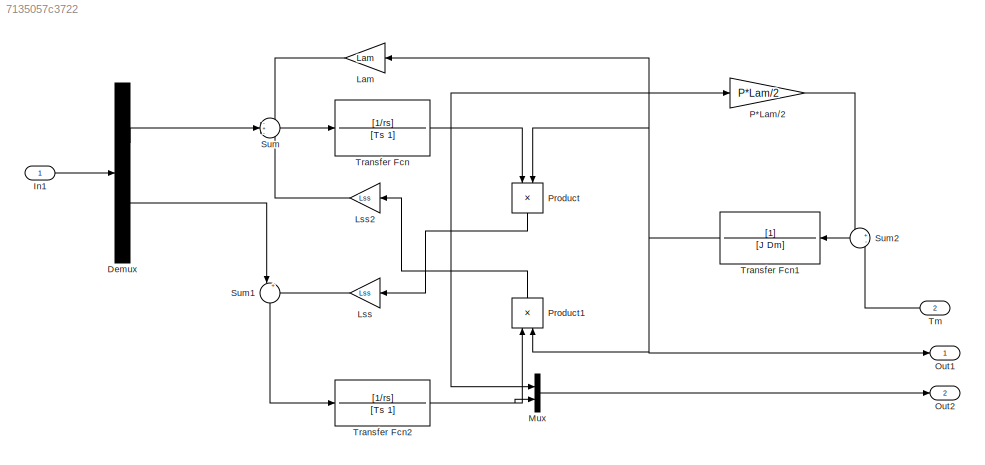
MODEL slx_7135057c3722
KIND model
CONFIG AbsTol = auto
CONFIG EnableMultiTasking = off
CONFIG FixedStep = auto
CONFIG MaxStep = auto
CONFIG MinStep = auto
CONFIG RelTol = 1e-3
CONFIG SampleTimeConstraint = Unconstrained
CONFIG SolverName = VariableStepAuto
CONFIG StartTime = 0.0
CONFIG StopTime = 10.0
BLOCK [Demux] Demux
  Outputs = 2
  Ports = [1, 2]
BLOCK [Inport] In1
  OutDataTypeStr = double
  PortDimensions = 2
  SampleTime = 0
  SamplingMode = Sample based
  SignalType = real
BLOCK [Gain] Lam
  Gain = Lam
BLOCK [Gain] Lss
  Gain = Lss
BLOCK [Gain] Lss2
  Gain = Lss
BLOCK [Mux] Mux
  DisplayOption = bar
  Inputs = 2
  Ports = [2, 1]
BLOCK [Outport] Out1
  OutDataTypeStr = double
  PortDimensions = 1
  SampleTime = 0
  SamplingMode = Sample based
  SignalType = real
BLOCK [Outport] Out2
  OutDataTypeStr = double
  Port = 2
  PortDimensions = 2
  SampleTime = 0
  SamplingMode = Sample based
  SignalType = real
BLOCK [Gain] P*Lam//2
  Gain = P*Lam/2
BLOCK [Product] Product
  NameLocation = left
  Ports = [2, 1]
BLOCK [Product] Product1
  NameLocation = right
  Ports = [2, 1]
BLOCK [Sum] Sum
  Inputs = -+-
  Ports = [3, 1]
BLOCK [Sum] Sum1
  Inputs = |++
  NameLocation = left
  Ports = [2, 1]
BLOCK [Sum] Sum2
  Inputs = +-
  Ports = [2, 1]
BLOCK [Inport] Tm
  OutDataTypeStr = double
  Port = 2
  PortDimensions = 1
  SampleTime = 0
  SamplingMode = Sample based
  SignalType = real
BLOCK [TransferFcn] Transfer Fcn
  Denominator = [Ts 1]
  Numerator = [1/rs]
BLOCK [TransferFcn] Transfer Fcn1
  Denominator = [J Dm]
BLOCK [TransferFcn] Transfer Fcn2
  Denominator = [Ts 1]
  Numerator = [1/rs]
LINE Demux:1 -> Sum:2
LINE Demux:2 -> Sum1:1
LINE In1:1 -> Demux:1
LINE Lam:1 -> Sum:1
LINE Lss2:1 -> Sum:3
LINE Lss:1 -> Sum1:2
LINE Mux:1 -> Out2:1
LINE P*Lam//2:1 -> Sum2:1
LINE Product1:1 -> Lss2:1
LINE Product:1 -> Lss:1
LINE Sum1:1 -> Transfer Fcn2:1
LINE Sum2:1 -> Transfer Fcn1:1
LINE Sum:1 -> Transfer Fcn:1
LINE Tm:1 -> Sum2:2
NET Transfer Fcn1:1 -> Lam:1, Out1:1, Product1:2, Product:2
NET Transfer Fcn2:1 -> Mux:2, Product1:1
NET Transfer Fcn:1 -> Mux:1, P*Lam//2:1, Product:1
note: NET lines group one-source signal fan-out (src -> all destinations, sorted); 1:1 wires keep LINE
